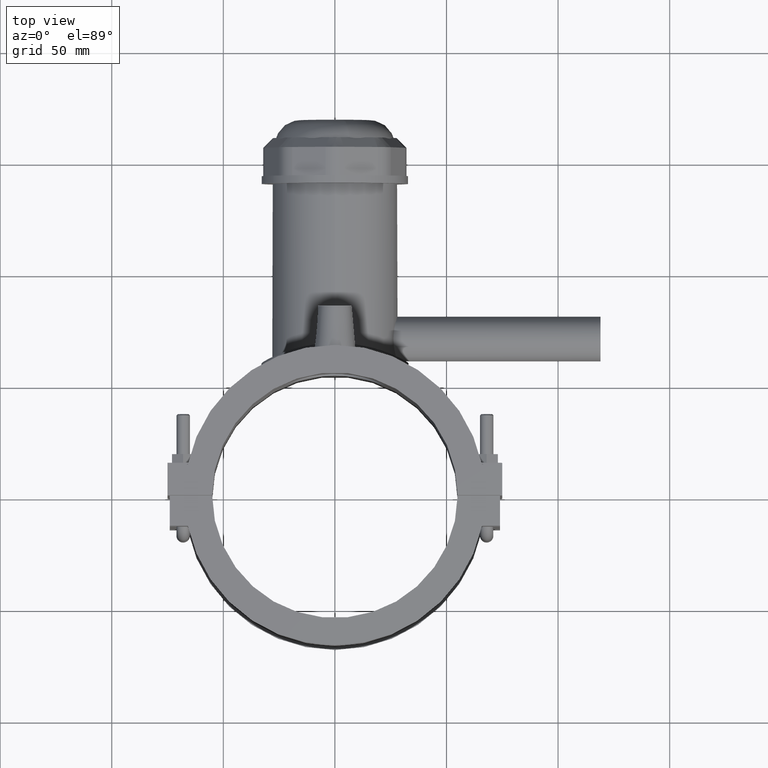
[diagram: clean part render]
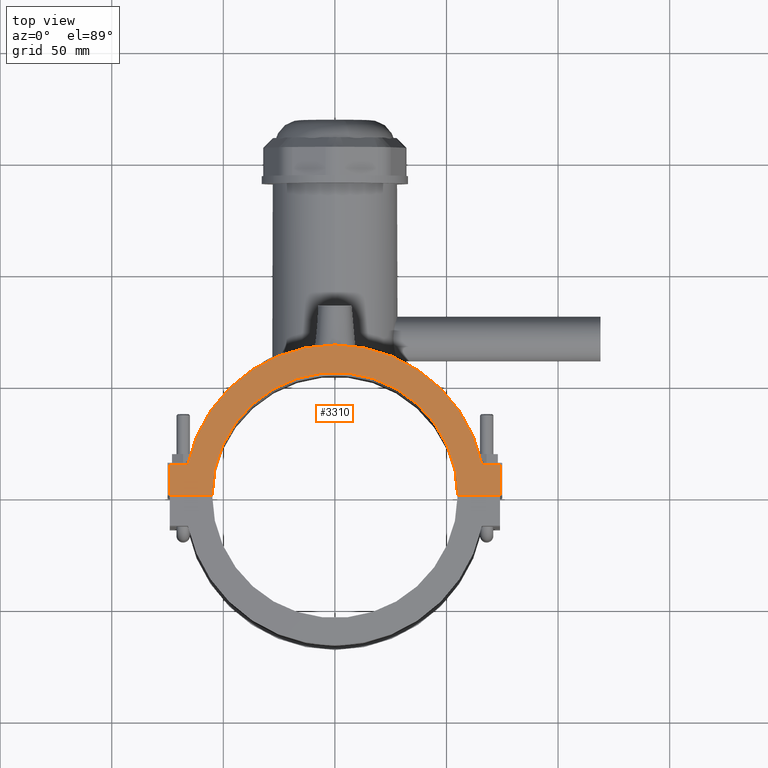
[diagram: same view with one face highlighted and labeled with its STEP entity id]
A machine part, top view. The second image highlights one B-rep face of the part: STEP entity #3310.
In plain terms, the highlighted planar face has unit normal (0, 0, 1).
Its self-contained STEP definition (entity closure, byte-faithful):
#134=LINE('',#5509,#421);
#175=LINE('',#5802,#462);
#218=LINE('',#6046,#505);
#220=LINE('',#6049,#507);
#275=LINE('',#6394,#562);
#320=LINE('',#6698,#607);
#421=VECTOR('',#3943,8.09916616612503);
#462=VECTOR('',#4018,13.7);
#505=VECTOR('',#4097,13.7);
#507=VECTOR('',#4101,8.09916616612503);
#562=VECTOR('',#4310,19.0000227272775);
#607=VECTOR('',#4467,19.0000227272774);
#729=PLANE('',#3607);
#778=CIRCLE('',#3422,67.32);
#840=CIRCLE('',#3604,55.);
#1082=FACE_OUTER_BOUND('',#1323,.T.);
#1323=EDGE_LOOP('',(#3068,#3069,#3070,#3071,#3072,#3073,#3074,#3075));
#1490=VERTEX_POINT('',#5478);
#1491=VERTEX_POINT('',#5479);
#1501=VERTEX_POINT('',#5507);
#1551=VERTEX_POINT('',#5800);
#1587=VERTEX_POINT('',#6043);
#1588=VERTEX_POINT('',#6045);
#1644=VERTEX_POINT('',#6392);
#1685=VERTEX_POINT('',#6697);
#1843=EDGE_CURVE('',#1490,#1491,#778,.T.);
#1858=EDGE_CURVE('',#1491,#1501,#134,.T.);
#1920=EDGE_CURVE('',#1501,#1551,#175,.T.);
#1972=EDGE_CURVE('',#1588,#1587,#218,.T.);
#1974=EDGE_CURVE('',#1587,#1490,#220,.T.);
#2064=EDGE_CURVE('',#1551,#1644,#275,.T.);
#2136=EDGE_CURVE('',#1685,#1588,#320,.T.);
#2142=EDGE_CURVE('',#1644,#1685,#840,.T.);
#3068=ORIENTED_EDGE('',*,*,#2136,.T.);
#3069=ORIENTED_EDGE('',*,*,#1972,.T.);
#3070=ORIENTED_EDGE('',*,*,#1974,.T.);
#3071=ORIENTED_EDGE('',*,*,#1843,.T.);
#3072=ORIENTED_EDGE('',*,*,#1858,.T.);
#3073=ORIENTED_EDGE('',*,*,#1920,.T.);
#3074=ORIENTED_EDGE('',*,*,#2064,.T.);
#3075=ORIENTED_EDGE('',*,*,#2142,.T.);
#3310=ADVANCED_FACE('',(#1082),#729,.T.);
#3422=AXIS2_PLACEMENT_3D('',#5480,#3914,#3915);
#3604=AXIS2_PLACEMENT_3D('',#6709,#4479,#4480);
#3607=AXIS2_PLACEMENT_3D('',#6712,#4485,#4486);
#3914=DIRECTION('center_axis',(0.,0.,1.));
#3915=DIRECTION('ref_axis',(0.97891910032494,0.204248366013072,0.));
#3943=DIRECTION('',(-1.,0.,0.));
#4018=DIRECTION('',(0.,-1.,0.));
#4097=DIRECTION('',(0.,1.,0.));
#4101=DIRECTION('',(-1.,0.,0.));
#4310=DIRECTION('',(1.,-5.27449705533489E-17,0.));
#4467=DIRECTION('',(1.,-5.27449705533489E-17,0.));
#4479=DIRECTION('center_axis',(0.,0.,-1.));
#4480=DIRECTION('ref_axis',(-1.,0.,0.));
#4485=DIRECTION('center_axis',(0.,0.,1.));
#4486=DIRECTION('ref_axis',(1.,0.,0.));
#5478=CARTESIAN_POINT('',(65.900833833875,13.75,59.));
#5479=CARTESIAN_POINT('',(-65.900833833875,13.75,59.));
#5480=CARTESIAN_POINT('Origin',(0.,0.,59.));
#5507=CARTESIAN_POINT('',(-74.,13.75,59.));
#5509=CARTESIAN_POINT('',(-64.5518202686803,13.75,59.));
#5800=CARTESIAN_POINT('',(-74.,0.0500000000000078,59.));
#5802=CARTESIAN_POINT('',(-74.,13.75,59.));
#6043=CARTESIAN_POINT('',(74.,13.75,59.));
#6045=CARTESIAN_POINT('',(74.,0.0499999999999989,59.));
#6046=CARTESIAN_POINT('',(74.,-13.75,59.));
#6049=CARTESIAN_POINT('',(74.,13.75,59.));
#6392=CARTESIAN_POINT('',(-54.9999772727226,0.0500000000000068,59.));
#6394=CARTESIAN_POINT('',(1.9764480446076,0.0500000000000038,59.));
#6697=CARTESIAN_POINT('',(54.9999772727226,0.050000000000001,59.));
#6698=CARTESIAN_POINT('',(1.9764480446076,0.0500000000000038,59.));
#6709=CARTESIAN_POINT('Origin',(0.,0.,59.));
#6712=CARTESIAN_POINT('Origin',(-70.0471039107848,-1.214036024795E-16,59.));